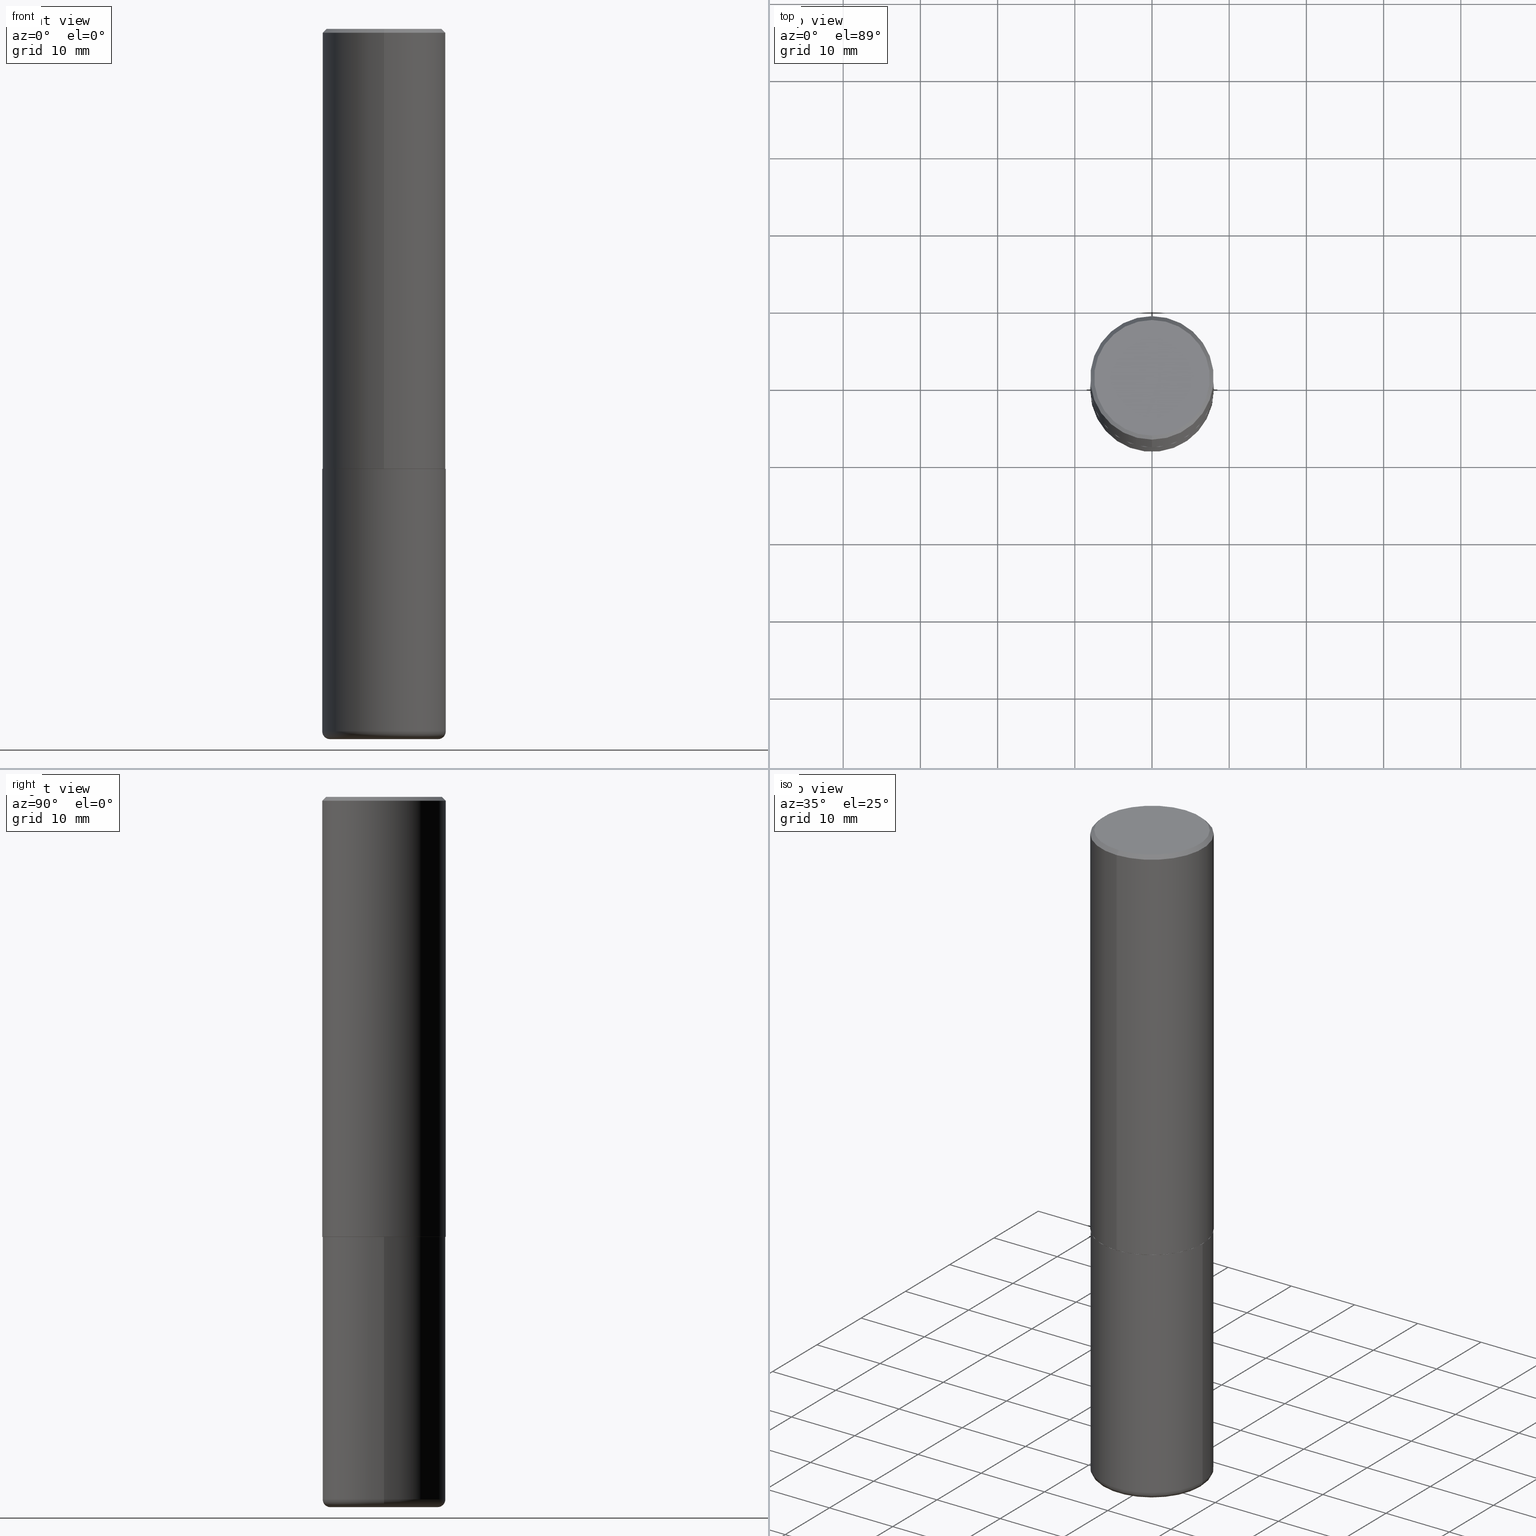
[diagram: canonical four-view strip — front | top / right | iso, engineering-drawing reading convention]
A machine part, canonical four-view strip (front | top / right | iso — engineering-drawing reading convention). The complete STEP part file that produces these views, byte-faithful:
ISO-10303-21;
HEADER;
FILE_DESCRIPTION (( 'STEP AP203' ),
    '1' );
FILE_NAME ('47131.STEP',
    '2024-03-05T21:56:59',
    ( '' ),
    ( '' ),
    'SwSTEP 2.0',
    'SolidWorks 2023',
    '' );
FILE_SCHEMA (( 'CONFIG_CONTROL_DESIGN' ));
ENDSEC;

DATA;
#1 = AXIS2_PLACEMENT_3D ( 'NONE', #198, #43, #37 ) ;
#2 = CC_DESIGN_PERSON_AND_ORGANIZATION_ASSIGNMENT ( #242, #104, ( #65 ) ) ;
#3 = DIRECTION ( 'NONE',  ( 1.000000000000000000, -6.982962677686267499E-15, 0.000000000000000000 ) ) ;
#4 = ORIENTED_EDGE ( 'NONE', *, *, #279, .F. ) ;
#5 = VECTOR ( 'NONE', #376, 39.37007874015748143 ) ;
#6 = DIRECTION ( 'NONE',  ( -2.445731576433639542E-29, 3.491105036891335583E-15, 1.000000000000000000 ) ) ;
#7 = LOCAL_TIME ( 16, 56, 59.00000000000000000, #139 ) ;
#8 = DATE_TIME_ROLE ( 'creation_date' ) ;
#9 = ORIENTED_EDGE ( 'NONE', *, *, #355, .T. ) ;
#10 = CARTESIAN_POINT ( 'NONE',  ( 4.891463152867296425E-31, -6.982210073782693945E-17, -0.02000000000000006981 ) ) ;
#11 = ADVANCED_FACE ( 'NONE', ( #340 ), #211, .T. ) ;
#12 = PERSON_AND_ORGANIZATION ( #39, #185 ) ;
#13 = APPLICATION_CONTEXT ( 'configuration controlled 3d designs of mechanical parts and assemblies' ) ;
#14 = APPROVAL_ROLE ( '' ) ;
#15 = ORIENTED_EDGE ( 'NONE', *, *, #84, .F. ) ;
#16 = FACE_OUTER_BOUND ( 'NONE', #393, .T. ) ;
#17 = CIRCLE ( 'NONE', #323, 0.3149500000000000077 ) ;
#18 = CIRCLE ( 'NONE', #329, 0.3149500000000000632 ) ;
#19 = EDGE_LOOP ( 'NONE', ( #45, #300, #407, #402 ) ) ;
#20 = EDGE_CURVE ( 'NONE', #135, #334, #87, .T. ) ;
#21 = VERTEX_POINT ( 'NONE', #312 ) ;
#22 = DIRECTION ( 'NONE',  ( -4.851104656540955597E-15, -0.7071067811865487940, -0.7071067811865461294 ) ) ;
#23 = ADVANCED_FACE ( 'NONE', ( #149 ), #35, .T. ) ;
#24 = AXIS2_PLACEMENT_3D ( 'NONE', #157, #258, #411 ) ;
#25 = AXIS2_PLACEMENT_3D ( 'NONE', #226, #346, #408 ) ;
#26 = LOCAL_TIME ( 16, 56, 59.00000000000000000, #115 ) ;
#27 = ORIENTED_EDGE ( 'NONE', *, *, #84, .T. ) ;
#28 = FACE_OUTER_BOUND ( 'NONE', #170, .T. ) ;
#29 = EDGE_CURVE ( 'NONE', #135, #21, #32, .T. ) ;
#30 = FACE_OUTER_BOUND ( 'NONE', #127, .T. ) ;
#31 = CARTESIAN_POINT ( 'NONE',  ( 5.485775925940652970E-29, -7.830548597747266147E-15, -2.242999999999999883 ) ) ;
#32 = LINE ( 'NONE', #129, #5 ) ;
#33 = LINE ( 'NONE', #78, #54 ) ;
#34 = FACE_OUTER_BOUND ( 'NONE', #368, .T. ) ;
#35 = CYLINDRICAL_SURFACE ( 'NONE', #24, 0.3149500000000000077 ) ;
#36 = ORIENTED_EDGE ( 'NONE', *, *, #201, .F. ) ;
#37 = DIRECTION ( 'NONE',  ( 1.000000000000000000, -6.982962677686269866E-15, 0.000000000000000000 ) ) ;
#38 = APPROVAL ( #118, 'UNSPECIFIED' ) ;
#39 = PERSON ( 'UNSPECIFIED', 'UNSPECIFIED', 'UNSPECIFIED', ('UNSPECIFIED'), ('UNSPECIFIED'), ('UNSPECIFIED') ) ;
#40 = CARTESIAN_POINT ( 'NONE',  ( 8.857488016002564476E-29, -1.264614540928987199E-14, -3.621999999999999886 ) ) ;
#41 = VECTOR ( 'NONE', #163, 39.37007874015748143 ) ;
#42 = ORIENTED_EDGE ( 'NONE', *, *, #304, .T. ) ;
#43 = DIRECTION ( 'NONE',  ( -2.445468806185136597E-29, 3.491481338843145583E-15, 1.000000000000000000 ) ) ;
#44 = EDGE_CURVE ( 'NONE', #98, #410, #64, .T. ) ;
#45 = ORIENTED_EDGE ( 'NONE', *, *, #356, .F. ) ;
#46 = CARTESIAN_POINT ( 'NONE',  ( 5.488221657517087855E-29, -7.834039702784156618E-15, -2.244000000000000217 ) ) ;
#47 = MANIFOLD_SOLID_BREP ( 'Body-Move/Copy2[2]', #143 ) ;
#48 = CIRCLE ( 'NONE', #222, 0.2949499999999999345 ) ;
#49 = AXIS2_PLACEMENT_3D ( 'NONE', #273, #175, #3 ) ;
#50 = PERSON_AND_ORGANIZATION ( #39, #185 ) ;
#51 = PRODUCT ( '47131', '47131', '', ( #203 ) ) ;
#52 = DIRECTION ( 'NONE',  ( -2.445468806185136597E-29, 3.491481338843145583E-15, 1.000000000000000000 ) ) ;
#53 = VECTOR ( 'NONE', #280, 39.37007874015748854 ) ;
#54 = VECTOR ( 'NONE', #236, 39.37007874015748854 ) ;
#55 = DIRECTION ( 'NONE',  ( 1.000000000000000000, -6.982962677686269866E-15, 0.000000000000000000 ) ) ;
#56 = DIRECTION ( 'NONE',  ( -6.982962677686265922E-15, -1.000000000000000000, 3.469564049740290009E-15 ) ) ;
#57 = PERSON_AND_ORGANIZATION ( #39, #185 ) ;
#58 = CARTESIAN_POINT ( 'NONE',  ( 0.000000000000000000, 0.000000000000000000, 0.000000000000000000 ) ) ;
#59 = ADVANCED_FACE ( 'NONE', ( #30 ), #96, .F. ) ;
#60 = LINE ( 'NONE', #314, #397 ) ;
#61 = ORIENTED_EDGE ( 'NONE', *, *, #201, .T. ) ;
#62 = DIRECTION ( 'NONE',  ( -2.445731576433639542E-29, 3.491105036891335583E-15, 1.000000000000000000 ) ) ;
#63 = ADVANCED_FACE ( 'NONE', ( #388 ), #297, .T. ) ;
#64 = CIRCLE ( 'NONE', #338, 0.2755500000000000171 ) ;
#65 = PRODUCT_DEFINITION_FORMATION_WITH_SPECIFIED_SOURCE ( 'ANY', '', #51, .NOT_KNOWN. ) ;
#66 = DIRECTION ( 'NONE',  ( 1.000000000000000000, -6.982962677686268288E-15, 0.000000000000000000 ) ) ;
#67 = CYLINDRICAL_SURFACE ( 'NONE', #284, 0.3149500000000001743 ) ;
#68 = DIRECTION ( 'NONE',  ( -2.445468806185136597E-29, 3.491481338843145583E-15, 1.000000000000000000 ) ) ;
#69 = DIRECTION ( 'NONE',  ( -2.445731576433639542E-29, 3.491105036891335583E-15, 1.000000000000000000 ) ) ;
#70 = DIRECTION ( 'NONE',  ( -1.000000000000000000, 6.982962677686265922E-15, -4.876176775795935793E-29 ) ) ;
#71 = CARTESIAN_POINT ( 'NONE',  ( -2.092108864420428031E-15, -0.2949499999999999345, 1.153377302583324726E-15 ) ) ;
#72 = ORIENTED_EDGE ( 'NONE', *, *, #363, .F. ) ;
#73 = LINE ( 'NONE', #265, #88 ) ;
#74 = ORIENTED_EDGE ( 'NONE', *, *, #355, .F. ) ;
#75 =( CONVERSION_BASED_UNIT ( 'INCH', #358 ) LENGTH_UNIT ( ) NAMED_UNIT ( #347 ) );
#76 = ORIENTED_EDGE ( 'NONE', *, *, #29, .T. ) ;
#77 = DIRECTION ( 'NONE',  ( -2.445468806185136597E-29, 3.491481338843145583E-15, 1.000000000000000000 ) ) ;
#78 = CARTESIAN_POINT ( 'NONE',  ( -2.192301132659548636E-15, -0.3139500000000078339, -2.243999999999998884 ) ) ;
#79 = APPROVAL_DATE_TIME ( #269, #38 ) ;
#80 = CIRCLE ( 'NONE', #239, 0.3149500000000002853 ) ;
#81 = CC_DESIGN_PERSON_AND_ORGANIZATION_ASSIGNMENT ( #274, #109, ( #65 ) ) ;
#82 = CARTESIAN_POINT ( 'NONE',  ( 0.3149500000000000077, -1.470786513987674265E-14, -3.582600000000000229 ) ) ;
#83 = PRODUCT_RELATED_PRODUCT_CATEGORY ( 'detail', '', ( #51 ) ) ;
#84 = EDGE_CURVE ( 'NONE', #281, #418, #122, .T. ) ;
#85 = ORIENTED_EDGE ( 'NONE', *, *, #172, .T. ) ;
#86 = CARTESIAN_POINT ( 'NONE',  ( -2.192301132659548636E-15, -0.3139500000000078339, -2.243999999999998884 ) ) ;
#87 = CIRCLE ( 'NONE', #228, 0.3149500000000000077 ) ;
#88 = VECTOR ( 'NONE', #295, 39.37007874015748143 ) ;
#89 = EDGE_CURVE ( 'NONE', #204, #296, #48, .T. ) ;
#90 = EDGE_CURVE ( 'NONE', #389, #418, #94, .T. ) ;
#91 = ORIENTED_EDGE ( 'NONE', *, *, #101, .F. ) ;
#92 = DIRECTION ( 'NONE',  ( -2.445468806185136597E-29, 3.491481338843145583E-15, 1.000000000000000000 ) ) ;
#93 = FACE_OUTER_BOUND ( 'NONE', #235, .T. ) ;
#94 = CIRCLE ( 'NONE', #379, 0.3149500000000000632 ) ;
#95 = CONICAL_SURFACE ( 'NONE', #229, 0.3139500000000000068, 0.7853981633974141952 ) ;
#96 = PLANE ( 'NONE',  #283 ) ;
#97 = CARTESIAN_POINT ( 'NONE',  ( 0.000000000000000000, 0.000000000000000000, 0.000000000000000000 ) ) ;
#98 = VERTEX_POINT ( 'NONE', #275 ) ;
#99 = DIRECTION ( 'NONE',  ( 2.445731576433639542E-29, -3.491105036891335583E-15, -1.000000000000000000 ) ) ;
#100 = LOCAL_TIME ( 16, 56, 59.00000000000000000, #378 ) ;
#101 = EDGE_CURVE ( 'NONE', #227, #281, #151, .T. ) ;
#102 = ORIENTED_EDGE ( 'NONE', *, *, #384, .T. ) ;
#103 = CARTESIAN_POINT ( 'NONE',  ( 4.891463152867296425E-31, -6.982210073782693945E-17, -0.02000000000000006981 ) ) ;
#104 = PERSON_AND_ORGANIZATION_ROLE ( 'design_supplier' ) ;
#105 = DIRECTION ( 'NONE',  ( -1.000000000000000000, 7.105427357601014480E-15, 0.000000000000000000 ) ) ;
#106 = TOROIDAL_SURFACE ( 'NONE', #317, 0.2755500000000000171, 0.03940000000000005997 ) ;
#107 = ORIENTED_EDGE ( 'NONE', *, *, #351, .F. ) ;
#108 = CC_DESIGN_PERSON_AND_ORGANIZATION_ASSIGNMENT ( #12, #272, ( #330 ) ) ;
#109 = PERSON_AND_ORGANIZATION_ROLE ( 'creator' ) ;
#110 = PERSON_AND_ORGANIZATION_ROLE ( 'design_owner' ) ;
#111 = CONICAL_SURFACE ( 'NONE', #271, 0.3149500000000000632, 0.7853981633974467247 ) ;
#112 = DIRECTION ( 'NONE',  ( -2.445731576433639262E-29, 3.491105036891335583E-15, 1.000000000000000000 ) ) ;
#113 =( NAMED_UNIT ( * ) SI_UNIT ( $, .STERADIAN. ) SOLID_ANGLE_UNIT ( ) );
#114 = DIRECTION ( 'NONE',  ( -2.445731576433639542E-29, 3.491105036891335583E-15, 1.000000000000000000 ) ) ;
#115 = COORDINATED_UNIVERSAL_TIME_OFFSET ( 5, 0, .BEHIND. ) ;
#116 = CARTESIAN_POINT ( 'NONE',  ( 8.761136545038868759E-29, -1.250858104453945120E-14, -3.582599999999999785 ) ) ;
#117 = AXIS2_PLACEMENT_3D ( 'NONE', #221, #156, #187 ) ;
#118 = APPROVAL_STATUS ( 'not_yet_approved' ) ;
#119 = FACE_OUTER_BOUND ( 'NONE', #324, .T. ) ;
#120 = ADVANCED_FACE ( 'NONE', ( #16 ), #311, .F. ) ;
#121 = VERTEX_POINT ( 'NONE', #145 ) ;
#122 = LINE ( 'NONE', #414, #396 ) ;
#123 = DIRECTION ( 'NONE',  ( 2.438088387897960049E-29, -3.491481338843145188E-15, -1.000000000000000000 ) ) ;
#124 = APPROVAL_PERSON_ORGANIZATION ( #250, #38, #219 ) ;
#125 = DIRECTION ( 'NONE',  ( -2.445731576433639542E-29, 3.491105036891335583E-15, 1.000000000000000000 ) ) ;
#126 = DIRECTION ( 'NONE',  ( -2.445731576433639542E-29, 3.491105036891335583E-15, 1.000000000000000000 ) ) ;
#127 = EDGE_LOOP ( 'NONE', ( #282, #153 ) ) ;
#128 = EDGE_CURVE ( 'NONE', #21, #345, #17, .T. ) ;
#129 = CARTESIAN_POINT ( 'NONE',  ( 0.3149500000000000077, -2.199284095337289871E-15, 1.535751875536930130E-29 ) ) ;
#130 = CARTESIAN_POINT ( 'NONE',  ( 8.857488016002564476E-29, -1.264614540928987199E-14, -3.621999999999999886 ) ) ;
#131 = DIRECTION ( 'NONE',  ( 2.445731576433639262E-29, -3.491105036891335583E-15, -1.000000000000000000 ) ) ;
#132 = ORIENTED_EDGE ( 'NONE', *, *, #101, .T. ) ;
#133 = CARTESIAN_POINT ( 'NONE',  ( -0.2755500000000000171, -1.055068053615249541E-14, -3.582599999999999785 ) ) ;
#134 = AXIS2_PLACEMENT_3D ( 'NONE', #133, #387, #105 ) ;
#135 = VERTEX_POINT ( 'NONE', #82 ) ;
#136 = EDGE_LOOP ( 'NONE', ( #208, #233 ) ) ;
#137 = VECTOR ( 'NONE', #285, 39.37007874015748143 ) ;
#138 = CC_DESIGN_APPROVAL ( #38, ( #330 ) ) ;
#139 = COORDINATED_UNIVERSAL_TIME_OFFSET ( 5, 0, .BEHIND. ) ;
#140 = DIRECTION ( 'NONE',  ( -6.982962677686265922E-15, -1.000000000000000000, 3.496670018878888311E-15 ) ) ;
#141 = SECURITY_CLASSIFICATION_LEVEL ( 'unclassified' ) ;
#142 = ORIENTED_EDGE ( 'NONE', *, *, #89, .F. ) ;
#143 = CLOSED_SHELL ( 'NONE', ( #63, #299, #209, #367, #254, #263, #120, #59 ) ) ;
#144 = AXIS2_PLACEMENT_3D ( 'NONE', #186, #123, #374 ) ;
#145 = CARTESIAN_POINT ( 'NONE',  ( 2.234301632597690306E-15, 0.3139499999999921798, -2.244000000000001105 ) ) ;
#146 =( NAMED_UNIT ( * ) PLANE_ANGLE_UNIT ( ) SI_UNIT ( $, .RADIAN. ) );
#147 = ORIENTED_EDGE ( 'NONE', *, *, #372, .T. ) ;
#148 = CARTESIAN_POINT ( 'NONE',  ( 5.488221657517086734E-29, -7.834039702784155040E-15, -2.243999999999999773 ) ) ;
#149 = FACE_OUTER_BOUND ( 'NONE', #303, .T. ) ;
#150 = FACE_OUTER_BOUND ( 'NONE', #331, .T. ) ;
#151 = CIRCLE ( 'NONE', #177, 0.3149500000000002853 ) ;
#152 = AXIS2_PLACEMENT_3D ( 'NONE', #361, #243, #277 ) ;
#153 = ORIENTED_EDGE ( 'NONE', *, *, #89, .T. ) ;
#154 = DIRECTION ( 'NONE',  ( -6.982962677686266711E-15, -1.000000000000000000, 3.480615376543096919E-15 ) ) ;
#155 = CARTESIAN_POINT ( 'NONE',  ( 5.488221657517087855E-29, -7.834039702784156618E-15, -2.244000000000000217 ) ) ;
#156 = DIRECTION ( 'NONE',  ( -2.445731576433639542E-29, 3.491105036891335583E-15, 1.000000000000000000 ) ) ;
#157 = CARTESIAN_POINT ( 'NONE',  ( 0.000000000000000000, 0.000000000000000000, 0.000000000000000000 ) ) ;
#158 = CARTESIAN_POINT ( 'NONE',  ( 2.129454468560426967E-15, 0.2949499999999999345, -9.060255586788737993E-16 ) ) ;
#159 = CARTESIAN_POINT ( 'NONE',  ( 2.199284095337290265E-15, 0.3149500000000000077, -0.02000000000000116962 ) ) ;
#160 = FACE_OUTER_BOUND ( 'NONE', #136, .T. ) ;
#161 = DESIGN_CONTEXT ( 'detailed design', #13, 'design' ) ;
#162 = ORIENTED_EDGE ( 'NONE', *, *, #223, .F. ) ;
#163 = DIRECTION ( 'NONE',  ( 4.937700262164540154E-15, 0.7071067811865440200, -0.7071067811865511255 ) ) ;
#164 = ORIENTED_EDGE ( 'NONE', *, *, #336, .F. ) ;
#165 = AXIS2_PLACEMENT_3D ( 'NONE', #58, #278, #369 ) ;
#166 =( LENGTH_UNIT ( ) NAMED_UNIT ( * ) SI_UNIT ( $, .METRE. ) );
#167 = AXIS2_PLACEMENT_3D ( 'NONE', #169, #321, #234 ) ;
#168 = ORIENTED_EDGE ( 'NONE', *, *, #316, .T. ) ;
#169 = CARTESIAN_POINT ( 'NONE',  ( -3.024779852765215528E-45, 4.317654595143425060E-31, 1.236758719522255372E-16 ) ) ;
#170 = EDGE_LOOP ( 'NONE', ( #15, #42, #102, #245 ) ) ;
#171 = CALENDAR_DATE ( 2024, 5, 3 ) ;
#172 = EDGE_CURVE ( 'NONE', #121, #281, #337, .T. ) ;
#173 = VERTEX_POINT ( 'NONE', #86 ) ;
#174 = DIRECTION ( 'NONE',  ( -2.445731576433639542E-29, 3.491105036891335583E-15, 1.000000000000000000 ) ) ;
#175 = DIRECTION ( 'NONE',  ( -6.982962677686266711E-15, -1.000000000000000000, 3.491481338843145583E-15 ) ) ;
#176 = DATE_AND_TIME ( #398, #7 ) ;
#177 = AXIS2_PLACEMENT_3D ( 'NONE', #401, #308, #56 ) ;
#178 = DIRECTION ( 'NONE',  ( 1.000000000000000000, -6.982962677686266711E-15, 0.000000000000000000 ) ) ;
#179 = CALENDAR_DATE ( 2024, 5, 3 ) ;
#180 = MANIFOLD_SOLID_BREP ( 'Body-Move/Copy2[1]', #270 ) ;
#181 = CARTESIAN_POINT ( 'NONE',  ( 8.761136545038871001E-29, -1.250858104453945278E-14, -3.582600000000000229 ) ) ;
#182 = DIRECTION ( 'NONE',  ( 1.000000000000000000, -6.982962677686268288E-15, 4.883557194083114022E-29 ) ) ;
#183 = ORIENTED_EDGE ( 'NONE', *, *, #383, .T. ) ;
#184 = CARTESIAN_POINT ( 'NONE',  ( 4.891463152867296425E-31, -6.982210073782693945E-17, -0.02000000000000006981 ) ) ;
#185 = ORGANIZATION ( 'UNSPECIFIED', 'UNSPECIFIED', '' ) ;
#186 = CARTESIAN_POINT ( 'NONE',  ( 5.487632001079445967E-29, -7.834884124364017250E-15, -2.243999999999999773 ) ) ;
#187 = DIRECTION ( 'NONE',  ( -6.982962677686264344E-15, -1.000000000000000000, 3.491105036891335189E-15 ) ) ;
#188 = DIRECTION ( 'NONE',  ( 1.000000000000000000, -6.982962677686268288E-15, 0.000000000000000000 ) ) ;
#189 = DIRECTION ( 'NONE',  ( -6.982962677686265922E-15, -1.000000000000000000, 3.496670018878888311E-15 ) ) ;
#190 = ORIENTED_EDGE ( 'NONE', *, *, #316, .F. ) ;
#191 = CIRCLE ( 'NONE', #25, 0.3139500000000000068 ) ;
#192 = APPROVAL_PERSON_ORGANIZATION ( #50, #375, #14 ) ;
#193 = EDGE_LOOP ( 'NONE', ( #183, #365, #353, #164 ) ) ;
#194 = ORIENTED_EDGE ( 'NONE', *, *, #384, .F. ) ;
#195 = CARTESIAN_POINT ( 'NONE',  ( -2.160713844398143757E-15, -0.3149500000000001743, -0.01999999999999896652 ) ) ;
#196 = EDGE_LOOP ( 'NONE', ( #132, #27, #293, #194 ) ) ;
#197 = AXIS2_PLACEMENT_3D ( 'NONE', #148, #112, #246 ) ;
#198 = CARTESIAN_POINT ( 'NONE',  ( 8.761136545038871001E-29, -1.250858104453945278E-14, -3.582600000000000229 ) ) ;
#199 = CIRCLE ( 'NONE', #260, 0.2755500000000000171 ) ;
#200 = CALENDAR_DATE ( 2024, 5, 3 ) ;
#201 = EDGE_CURVE ( 'NONE', #334, #345, #214, .T. ) ;
#202 = ORIENTED_EDGE ( 'NONE', *, *, #304, .F. ) ;
#203 = MECHANICAL_CONTEXT ( 'NONE', #364, 'mechanical' ) ;
#204 = VERTEX_POINT ( 'NONE', #71 ) ;
#205 = CARTESIAN_POINT ( 'NONE',  ( 5.487632001079445967E-29, -7.834884124364017250E-15, -2.243999999999999773 ) ) ;
#206 = DATE_AND_TIME ( #171, #370 ) ;
#207 = AXIS2_PLACEMENT_3D ( 'NONE', #205, #77, #332 ) ;
#208 = ORIENTED_EDGE ( 'NONE', *, *, #383, .F. ) ;
#209 = ADVANCED_FACE ( 'NONE', ( #93 ), #333, .T. ) ;
#210 = ORIENTED_EDGE ( 'NONE', *, *, #20, .T. ) ;
#211 = CYLINDRICAL_SURFACE ( 'NONE', #165, 0.3149500000000000077 ) ;
#212 = DIRECTION ( 'NONE',  ( -2.445468806185136597E-29, 3.491481338843145583E-15, 1.000000000000000000 ) ) ;
#213 = CIRCLE ( 'NONE', #49, 0.03940000000000005997 ) ;
#214 = LINE ( 'NONE', #350, #137 ) ;
#215 = PERSON_AND_ORGANIZATION ( #39, #185 ) ;
#216 = PRODUCT_DEFINITION_SHAPE ( 'NONE', 'NONE',  #330 ) ;
#217 = ORIENTED_EDGE ( 'NONE', *, *, #386, .F. ) ;
#218 = PERSON_AND_ORGANIZATION_ROLE ( 'classification_officer' ) ;
#219 = APPROVAL_ROLE ( '' ) ;
#220 = ORIENTED_EDGE ( 'NONE', *, *, #279, .T. ) ;
#221 = CARTESIAN_POINT ( 'NONE',  ( 0.000000000000000000, 0.000000000000000000, 0.000000000000000000 ) ) ;
#222 = AXIS2_PLACEMENT_3D ( 'NONE', #261, #114, #305 ) ;
#223 = EDGE_CURVE ( 'NONE', #121, #173, #191, .T. ) ;
#224 = CIRCLE ( 'NONE', #207, 0.3149500000000000077 ) ;
#225 = CARTESIAN_POINT ( 'NONE',  ( 5.488221657517087855E-29, -7.834039702784156618E-15, -2.244000000000000217 ) ) ;
#226 = CARTESIAN_POINT ( 'NONE',  ( 5.488221657517087855E-29, -7.834039702784156618E-15, -2.244000000000000217 ) ) ;
#227 = VERTEX_POINT ( 'NONE', #320 ) ;
#228 = AXIS2_PLACEMENT_3D ( 'NONE', #181, #212, #55 ) ;
#229 = AXIS2_PLACEMENT_3D ( 'NONE', #225, #318, #154 ) ;
#230 = CC_DESIGN_SECURITY_CLASSIFICATION ( #244, ( #65 ) ) ;
#231 = ADVANCED_BREP_SHAPE_REPRESENTATION ( '47131', ( #180, #47, #152 ), #354 ) ;
#232 = CARTESIAN_POINT ( 'NONE',  ( 0.2755500000000000171, -1.457030077512632343E-14, -3.621999999999999886 ) ) ;
#233 = ORIENTED_EDGE ( 'NONE', *, *, #44, .F. ) ;
#234 = DIRECTION ( 'NONE',  ( -6.982962677686267499E-15, -1.000000000000000000, 3.491105036891335189E-15 ) ) ;
#235 = EDGE_LOOP ( 'NONE', ( #142, #220, #286, #72 ) ) ;
#236 = DIRECTION ( 'NONE',  ( -4.937700262164378437E-15, -0.7071067811865208164, 0.7071067811865739960 ) ) ;
#237 = APPROVAL ( #405, 'UNSPECIFIED' ) ;
#238 = CARTESIAN_POINT ( 'NONE',  ( 2.199284095337290265E-15, 0.3149500000000000077, -0.02000000000000116962 ) ) ;
#239 = AXIS2_PLACEMENT_3D ( 'NONE', #31, #126, #262 ) ;
#240 = UNCERTAINTY_MEASURE_WITH_UNIT (LENGTH_MEASURE( 1.000000000000000082E-05 ), #75, 'distance_accuracy_value', 'NONE');
#241 = ORIENTED_EDGE ( 'NONE', *, *, #223, .T. ) ;
#242 = PERSON_AND_ORGANIZATION ( #39, #185 ) ;
#243 = DIRECTION ( 'NONE',  ( 0.000000000000000000, 0.000000000000000000, 1.000000000000000000 ) ) ;
#244 = SECURITY_CLASSIFICATION ( '', '', #141 ) ;
#245 = ORIENTED_EDGE ( 'NONE', *, *, #255, .F. ) ;
#246 = DIRECTION ( 'NONE',  ( -6.982962677686265922E-15, -1.000000000000000000, 3.491105036891335583E-15 ) ) ;
#247 = CARTESIAN_POINT ( 'NONE',  ( 5.487632001079445967E-29, -7.834884124364017250E-15, -2.243999999999999773 ) ) ;
#248 = ORIENTED_EDGE ( 'NONE', *, *, #128, .T. ) ;
#249 = DATE_TIME_ROLE ( 'classification_date' ) ;
#250 = PERSON_AND_ORGANIZATION ( #39, #185 ) ;
#251 = DIRECTION ( 'NONE',  ( -2.445468806185136597E-29, 3.491481338843145583E-15, 1.000000000000000000 ) ) ;
#252 = APPROVAL_PERSON_ORGANIZATION ( #57, #237, #313 ) ;
#253 = PLANE ( 'NONE',  #144 ) ;
#254 = ADVANCED_FACE ( 'NONE', ( #28 ), #67, .T. ) ;
#255 = EDGE_CURVE ( 'NONE', #418, #389, #18, .T. ) ;
#256 = DIRECTION ( 'NONE',  ( 2.445731576433639542E-29, -3.491105036891335583E-15, -1.000000000000000000 ) ) ;
#257 = CALENDAR_DATE ( 2024, 5, 3 ) ;
#258 = DIRECTION ( 'NONE',  ( -2.445468806185136597E-29, 3.491481338843145583E-15, 1.000000000000000000 ) ) ;
#259 = FACE_OUTER_BOUND ( 'NONE', #193, .T. ) ;
#260 = AXIS2_PLACEMENT_3D ( 'NONE', #130, #391, #188 ) ;
#261 = CARTESIAN_POINT ( 'NONE',  ( -3.024779852765215528E-45, 4.317654595143425060E-31, 1.236758719522255372E-16 ) ) ;
#262 = DIRECTION ( 'NONE',  ( -6.982962677686265922E-15, -1.000000000000000000, 3.469564049740290009E-15 ) ) ;
#263 = ADVANCED_FACE ( 'NONE', ( #119 ), #95, .T. ) ;
#264 = TOROIDAL_SURFACE ( 'NONE', #302, 0.2755500000000000171, 0.03940000000000005997 ) ;
#265 = CARTESIAN_POINT ( 'NONE',  ( -2.199284095337290265E-15, -0.3149500000000001743, 1.099523531368926621E-15 ) ) ;
#266 = DIRECTION ( 'NONE',  ( -6.982962677686266711E-15, -1.000000000000000000, 3.480615376543096919E-15 ) ) ;
#267 = ADVANCED_FACE ( 'NONE', ( #259 ), #264, .T. ) ;
#268 = CC_DESIGN_PERSON_AND_ORGANIZATION_ASSIGNMENT ( #215, #218, ( #244 ) ) ;
#269 = DATE_AND_TIME ( #200, #406 ) ;
#270 = CLOSED_SHELL ( 'NONE', ( #23, #267, #298, #11, #315, #373 ) ) ;
#271 = AXIS2_PLACEMENT_3D ( 'NONE', #103, #99, #416 ) ;
#272 = PERSON_AND_ORGANIZATION_ROLE ( 'creator' ) ;
#273 = CARTESIAN_POINT ( 'NONE',  ( 0.2755500000000000171, -1.443273641037590422E-14, -3.582599999999999785 ) ) ;
#274 = PERSON_AND_ORGANIZATION ( #39, #185 ) ;
#275 = CARTESIAN_POINT ( 'NONE',  ( -0.2755500000000000171, -1.047948579958296492E-14, -3.621999999999999886 ) ) ;
#276 = AXIS2_PLACEMENT_3D ( 'NONE', #46, #6, #266 ) ;
#277 = DIRECTION ( 'NONE',  ( 1.000000000000000000, 0.000000000000000000, 0.000000000000000000 ) ) ;
#278 = DIRECTION ( 'NONE',  ( -2.445468806185136597E-29, 3.491481338843145583E-15, 1.000000000000000000 ) ) ;
#279 = EDGE_CURVE ( 'NONE', #204, #389, #60, .T. ) ;
#280 = DIRECTION ( 'NONE',  ( 5.024295867787889629E-15, 0.7071067811865257013, 0.7071067811865691111 ) ) ;
#281 = VERTEX_POINT ( 'NONE', #289 ) ;
#282 = ORIENTED_EDGE ( 'NONE', *, *, #386, .T. ) ;
#283 = AXIS2_PLACEMENT_3D ( 'NONE', #417, #131, #288 ) ;
#284 = AXIS2_PLACEMENT_3D ( 'NONE', #97, #62, #412 ) ;
#285 = DIRECTION ( 'NONE',  ( -2.445468806185136877E-29, 3.491481338843145188E-15, 1.000000000000000000 ) ) ;
#286 = ORIENTED_EDGE ( 'NONE', *, *, #90, .T. ) ;
#287 = DIRECTION ( 'NONE',  ( -2.445731576433639542E-29, 3.491105036891335583E-15, 1.000000000000000000 ) ) ;
#288 = DIRECTION ( 'NONE',  ( 6.982962677686265922E-15, 1.000000000000000000, -3.491105036891335583E-15 ) ) ;
#289 = CARTESIAN_POINT ( 'NONE',  ( 2.237854346276464384E-15, 0.3149499999999924027, -2.243000000000000771 ) ) ;
#290 = AXIS2_PLACEMENT_3D ( 'NONE', #415, #256, #385 ) ;
#291 = DIRECTION ( 'NONE',  ( 2.438088387897960049E-29, -3.491481338843145188E-15, -1.000000000000000000 ) ) ;
#292 = CARTESIAN_POINT ( 'NONE',  ( 8.857488016002564476E-29, -1.264614540928987199E-14, -3.621999999999999886 ) ) ;
#293 = ORIENTED_EDGE ( 'NONE', *, *, #90, .F. ) ;
#294 = CC_DESIGN_PERSON_AND_ORGANIZATION_ASSIGNMENT ( #399, #110, ( #51 ) ) ;
#295 = DIRECTION ( 'NONE',  ( -2.445731576433639542E-29, 3.491105036891335583E-15, 1.000000000000000000 ) ) ;
#296 = VERTEX_POINT ( 'NONE', #158 ) ;
#297 = CONICAL_SURFACE ( 'NONE', #352, 0.3139500000000000068, 0.7853981633974141952 ) ;
#298 = ADVANCED_FACE ( 'NONE', ( #150 ), #253, .F. ) ;
#299 = ADVANCED_FACE ( 'NONE', ( #404 ), #377, .T. ) ;
#300 = ORIENTED_EDGE ( 'NONE', *, *, #44, .T. ) ;
#301 = COORDINATED_UNIVERSAL_TIME_OFFSET ( 5, 0, .BEHIND. ) ;
#302 = AXIS2_PLACEMENT_3D ( 'NONE', #322, #92, #182 ) ;
#303 = EDGE_LOOP ( 'NONE', ( #210, #61, #342, #326 ) ) ;
#304 = EDGE_CURVE ( 'NONE', #281, #227, #80, .T. ) ;
#305 = DIRECTION ( 'NONE',  ( -6.982962677686267499E-15, -1.000000000000000000, 3.491105036891335189E-15 ) ) ;
#306 = CARTESIAN_POINT ( 'NONE',  ( -0.3149500000000000077, -1.027072669826301679E-14, -3.582600000000000229 ) ) ;
#307 = APPROVAL_STATUS ( 'not_yet_approved' ) ;
#308 = DIRECTION ( 'NONE',  ( -2.445731576433639542E-29, 3.491105036891335583E-15, 1.000000000000000000 ) ) ;
#309 = CC_DESIGN_DATE_AND_TIME_ASSIGNMENT ( #341, #249, ( #244 ) ) ;
#310 = ORIENTED_EDGE ( 'NONE', *, *, #351, .T. ) ;
#311 = PLANE ( 'NONE',  #197 ) ;
#312 = CARTESIAN_POINT ( 'NONE',  ( 0.3149500000000000077, -1.003416821970130712E-14, -2.243999999999999773 ) ) ;
#313 = APPROVAL_ROLE ( '' ) ;
#314 = CARTESIAN_POINT ( 'NONE',  ( -2.160713844398143757E-15, -0.3149500000000001743, -0.01999999999999896652 ) ) ;
#315 = ADVANCED_FACE ( 'NONE', ( #382 ), #106, .T. ) ;
#316 = EDGE_CURVE ( 'NONE', #173, #227, #33, .T. ) ;
#317 = AXIS2_PLACEMENT_3D ( 'NONE', #116, #251, #371 ) ;
#318 = DIRECTION ( 'NONE',  ( -2.445731576433639542E-29, 3.491105036891335583E-15, 1.000000000000000000 ) ) ;
#319 = DATE_AND_TIME ( #179, #100 ) ;
#320 = CARTESIAN_POINT ( 'NONE',  ( -2.199284095337236228E-15, -0.3149500000000081124, -2.242999999999998550 ) ) ;
#321 = DIRECTION ( 'NONE',  ( -2.445731576433639542E-29, 3.491105036891335583E-15, 1.000000000000000000 ) ) ;
#322 = CARTESIAN_POINT ( 'NONE',  ( 8.761136545038868759E-29, -1.250858104453945120E-14, -3.582599999999999785 ) ) ;
#323 = AXIS2_PLACEMENT_3D ( 'NONE', #247, #52, #178 ) ;
#324 = EDGE_LOOP ( 'NONE', ( #357, #241, #168, #202 ) ) ;
#325 = CIRCLE ( 'NONE', #167, 0.2949499999999999345 ) ;
#326 = ORIENTED_EDGE ( 'NONE', *, *, #29, .F. ) ;
#327 = ORIENTED_EDGE ( 'NONE', *, *, #363, .T. ) ;
#328 = EDGE_LOOP ( 'NONE', ( #36, #147, #76, #107 ) ) ;
#329 = AXIS2_PLACEMENT_3D ( 'NONE', #184, #69, #189 ) ;
#330 = PRODUCT_DEFINITION ( 'UNKNOWN', '', #65, #161 ) ;
#331 = EDGE_LOOP ( 'NONE', ( #248, #310 ) ) ;
#332 = DIRECTION ( 'NONE',  ( 1.000000000000000000, -6.982962677686266711E-15, 0.000000000000000000 ) ) ;
#333 = CONICAL_SURFACE ( 'NONE', #290, 0.3149500000000000632, 0.7853981633974467247 ) ;
#334 = VERTEX_POINT ( 'NONE', #306 ) ;
#335 = COORDINATED_UNIVERSAL_TIME_OFFSET ( 5, 0, .BEHIND. ) ;
#336 = EDGE_CURVE ( 'NONE', #410, #135, #213, .T. ) ;
#337 = LINE ( 'NONE', #403, #53 ) ;
#338 = AXIS2_PLACEMENT_3D ( 'NONE', #292, #68, #66 ) ;
#339 = CIRCLE ( 'NONE', #1, 0.3149500000000000077 ) ;
#340 = FACE_OUTER_BOUND ( 'NONE', #328, .T. ) ;
#341 = DATE_AND_TIME ( #257, #26 ) ;
#342 = ORIENTED_EDGE ( 'NONE', *, *, #128, .F. ) ;
#343 = CC_DESIGN_DATE_AND_TIME_ASSIGNMENT ( #206, #8, ( #330 ) ) ;
#344 = SHAPE_DEFINITION_REPRESENTATION ( #216, #231 ) ;
#345 = VERTEX_POINT ( 'NONE', #359 ) ;
#346 = DIRECTION ( 'NONE',  ( -2.445731576433639542E-29, 3.491105036891335583E-15, 1.000000000000000000 ) ) ;
#347 = DIMENSIONAL_EXPONENTS ( 1.000000000000000000, 0.000000000000000000, 0.000000000000000000, 0.000000000000000000, 0.000000000000000000, 0.000000000000000000, 0.000000000000000000 ) ;
#348 = CIRCLE ( 'NONE', #276, 0.3139500000000000068 ) ;
#349 = CC_DESIGN_APPROVAL ( #237, ( #244 ) ) ;
#350 = CARTESIAN_POINT ( 'NONE',  ( -0.3149500000000000077, 2.237854346276435590E-15, -1.549218606675782676E-29 ) ) ;
#351 = EDGE_CURVE ( 'NONE', #345, #21, #224, .T. ) ;
#352 = AXIS2_PLACEMENT_3D ( 'NONE', #155, #287, #380 ) ;
#353 = ORIENTED_EDGE ( 'NONE', *, *, #20, .F. ) ;
#354 =( GEOMETRIC_REPRESENTATION_CONTEXT ( 3 ) GLOBAL_UNCERTAINTY_ASSIGNED_CONTEXT ( ( #240 ) ) GLOBAL_UNIT_ASSIGNED_CONTEXT ( ( #75, #146, #113 ) ) REPRESENTATION_CONTEXT ( 'NONE', 'WORKASPACE' ) );
#355 = EDGE_CURVE ( 'NONE', #173, #121, #348, .T. ) ;
#356 = EDGE_CURVE ( 'NONE', #98, #334, #366, .T. ) ;
#357 = ORIENTED_EDGE ( 'NONE', *, *, #172, .F. ) ;
#358 = LENGTH_MEASURE_WITH_UNIT ( LENGTH_MEASURE( 0.02539999999999999897 ), #166 );
#359 = CARTESIAN_POINT ( 'NONE',  ( -0.3149500000000000077, -7.933878238175299817E-15, -2.243999999999999773 ) ) ;
#360 = EDGE_LOOP ( 'NONE', ( #9, #85, #91, #190 ) ) ;
#361 = CARTESIAN_POINT ( 'NONE',  ( 0.000000000000000000, 0.000000000000000000, 0.000000000000000000 ) ) ;
#362 = APPLICATION_PROTOCOL_DEFINITION ( 'international standard', 'config_control_design', 1994, #364 ) ;
#363 = EDGE_CURVE ( 'NONE', #296, #418, #395, .T. ) ;
#364 = APPLICATION_CONTEXT ( 'configuration controlled 3d designs of mechanical parts and assemblies' ) ;
#365 = ORIENTED_EDGE ( 'NONE', *, *, #356, .T. ) ;
#366 = CIRCLE ( 'NONE', #134, 0.03940000000000005997 ) ;
#367 = ADVANCED_FACE ( 'NONE', ( #34 ), #111, .T. ) ;
#368 = EDGE_LOOP ( 'NONE', ( #4, #217, #327, #400 ) ) ;
#369 = DIRECTION ( 'NONE',  ( 1.000000000000000000, -6.982962677686266711E-15, 4.876176775795936353E-29 ) ) ;
#370 = LOCAL_TIME ( 16, 56, 59.00000000000000000, #301 ) ;
#371 = DIRECTION ( 'NONE',  ( 1.000000000000000000, -6.982962677686268288E-15, 4.883557194083114022E-29 ) ) ;
#372 = EDGE_CURVE ( 'NONE', #334, #135, #339, .T. ) ;
#373 = ADVANCED_FACE ( 'NONE', ( #160 ), #392, .T. ) ;
#374 = DIRECTION ( 'NONE',  ( -1.000000000000000000, 6.982962677686265922E-15, -4.876176775795935793E-29 ) ) ;
#375 = APPROVAL ( #307, 'UNSPECIFIED' ) ;
#376 = DIRECTION ( 'NONE',  ( -2.445468806185136877E-29, 3.491481338843145188E-15, 1.000000000000000000 ) ) ;
#377 = CYLINDRICAL_SURFACE ( 'NONE', #117, 0.3149500000000001743 ) ;
#378 = COORDINATED_UNIVERSAL_TIME_OFFSET ( 5, 0, .BEHIND. ) ;
#379 = AXIS2_PLACEMENT_3D ( 'NONE', #10, #174, #140 ) ;
#380 = DIRECTION ( 'NONE',  ( -6.982962677686266711E-15, -1.000000000000000000, 3.480615376543096919E-15 ) ) ;
#381 = AXIS2_PLACEMENT_3D ( 'NONE', #40, #291, #70 ) ;
#382 = FACE_OUTER_BOUND ( 'NONE', #19, .T. ) ;
#383 = EDGE_CURVE ( 'NONE', #410, #98, #199, .T. ) ;
#384 = EDGE_CURVE ( 'NONE', #227, #389, #73, .T. ) ;
#385 = DIRECTION ( 'NONE',  ( 6.982962677686265922E-15, 1.000000000000000000, -3.496670018878888311E-15 ) ) ;
#386 = EDGE_CURVE ( 'NONE', #296, #204, #325, .T. ) ;
#387 = DIRECTION ( 'NONE',  ( 7.105427357601001859E-15, 1.000000000000000000, -3.491481338843145583E-15 ) ) ;
#388 = FACE_OUTER_BOUND ( 'NONE', #360, .T. ) ;
#389 = VERTEX_POINT ( 'NONE', #195 ) ;
#390 = CC_DESIGN_APPROVAL ( #375, ( #65 ) ) ;
#391 = DIRECTION ( 'NONE',  ( -2.445468806185136597E-29, 3.491481338843145583E-15, 1.000000000000000000 ) ) ;
#392 = PLANE ( 'NONE',  #381 ) ;
#393 = EDGE_LOOP ( 'NONE', ( #74, #162 ) ) ;
#394 = APPROVAL_DATE_TIME ( #176, #375 ) ;
#395 = LINE ( 'NONE', #238, #41 ) ;
#396 = VECTOR ( 'NONE', #125, 39.37007874015748143 ) ;
#397 = VECTOR ( 'NONE', #22, 39.37007874015748854 ) ;
#398 = CALENDAR_DATE ( 2024, 5, 3 ) ;
#399 = PERSON_AND_ORGANIZATION ( #39, #185 ) ;
#400 = ORIENTED_EDGE ( 'NONE', *, *, #255, .T. ) ;
#401 = CARTESIAN_POINT ( 'NONE',  ( 5.485775925940652970E-29, -7.830548597747266147E-15, -2.242999999999999883 ) ) ;
#402 = ORIENTED_EDGE ( 'NONE', *, *, #372, .F. ) ;
#403 = CARTESIAN_POINT ( 'NONE',  ( 2.230748918918889014E-15, 0.3139499999999921798, -2.244000000000001105 ) ) ;
#404 = FACE_OUTER_BOUND ( 'NONE', #196, .T. ) ;
#405 = APPROVAL_STATUS ( 'not_yet_approved' ) ;
#406 = LOCAL_TIME ( 16, 56, 59.00000000000000000, #335 ) ;
#407 = ORIENTED_EDGE ( 'NONE', *, *, #336, .T. ) ;
#408 = DIRECTION ( 'NONE',  ( -6.982962677686266711E-15, -1.000000000000000000, 3.480615376543096919E-15 ) ) ;
#409 = APPROVAL_DATE_TIME ( #319, #237 ) ;
#410 = VERTEX_POINT ( 'NONE', #232 ) ;
#411 = DIRECTION ( 'NONE',  ( 1.000000000000000000, -6.982962677686266711E-15, 4.876176775795936353E-29 ) ) ;
#412 = DIRECTION ( 'NONE',  ( -6.982962677686264344E-15, -1.000000000000000000, 3.491105036891335189E-15 ) ) ;
#413 = APPLICATION_PROTOCOL_DEFINITION ( 'international standard', 'config_control_design', 1994, #13 ) ;
#414 = CARTESIAN_POINT ( 'NONE',  ( 2.237854346276435985E-15, 0.3149500000000001743, -1.099523531368926621E-15 ) ) ;
#415 = CARTESIAN_POINT ( 'NONE',  ( 4.891463152867296425E-31, -6.982210073782693945E-17, -0.02000000000000006981 ) ) ;
#416 = DIRECTION ( 'NONE',  ( 6.982962677686265922E-15, 1.000000000000000000, -3.496670018878888311E-15 ) ) ;
#417 = CARTESIAN_POINT ( 'NONE',  ( 2.059624841783564063E-15, 0.2949499999999999345, -9.678634946549864323E-16 ) ) ;
#418 = VERTEX_POINT ( 'NONE', #159 ) ;
ENDSEC;
END-ISO-10303-21;
